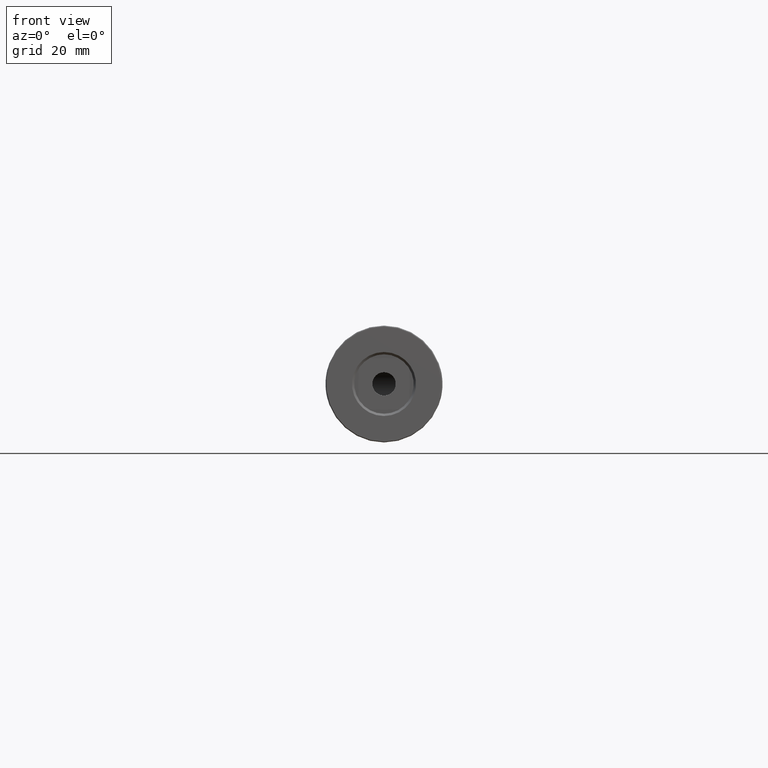
[diagram: clean part render]
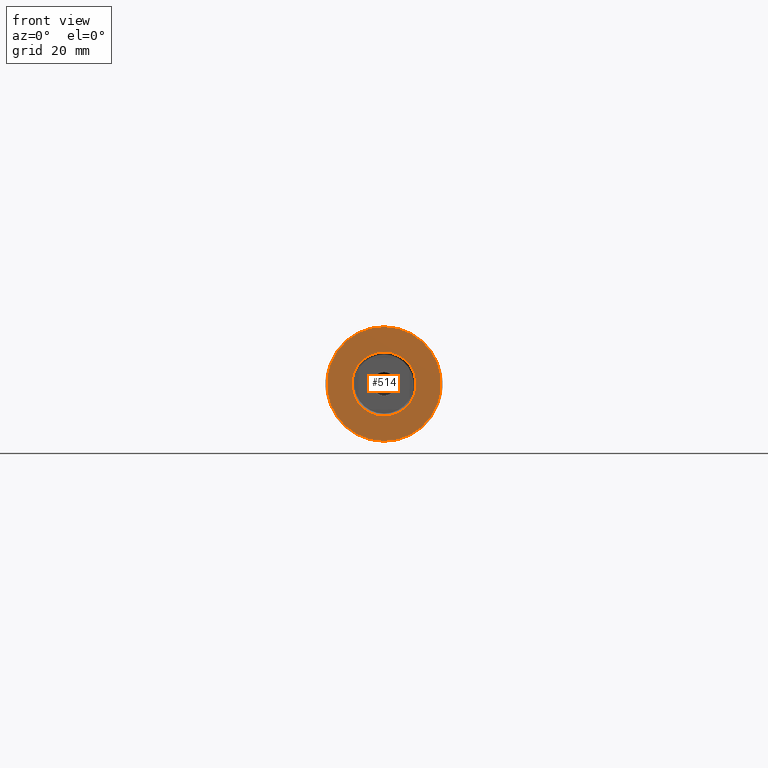
[diagram: same view with one face highlighted and labeled with its STEP entity id]
A machine part, front view. The second image highlights one B-rep face of the part: STEP entity #514.
In plain terms, the highlighted planar face has unit normal (0, 1, 0).
Its self-contained STEP definition (entity closure, byte-faithful):
#217 = CARTESIAN_POINT ( 'NONE',  ( -22.50520183104453409, -74.80174781523061256, 50.00000000000000000 ) ) ;
#307 = FACE_OUTER_BOUND ( 'NONE', #497, .T. ) ;
#390 = ORIENTED_EDGE ( 'NONE', *, *, #1206, .T. ) ;
#497 = EDGE_LOOP ( 'NONE', ( #2055, #390 ) ) ;
#514 = ADVANCED_FACE ( 'NONE', ( #307, #1941 ), #2471, .F. ) ;
#542 = DIRECTION ( 'NONE',  ( 0.0000000000000000000, 0.0000000000000000000, 1.000000000000000000 ) ) ;
#613 = DIRECTION ( 'NONE',  ( 0.0000000000000000000, 1.000000000000000000, 0.0000000000000000000 ) ) ;
#718 = DIRECTION ( 'NONE',  ( 0.0000000000000000000, 0.0000000000000000000, 1.000000000000000000 ) ) ;
#740 = CARTESIAN_POINT ( 'NONE',  ( -22.50520183104453409, -74.80174781523061256, 56.84999999999997300 ) ) ;
#813 = DIRECTION ( 'NONE',  ( 0.0000000000000000000, 0.0000000000000000000, 1.000000000000000000 ) ) ;
#833 = CIRCLE ( 'NONE', #2292, 6.849999999999967670 ) ;
#992 = VERTEX_POINT ( 'NONE', #2876 ) ;
#1001 = CARTESIAN_POINT ( 'NONE',  ( -22.50520183104453409, -74.80174781523061256, 50.00000000000000000 ) ) ;
#1034 = DIRECTION ( 'NONE',  ( -0.0000000000000000000, -1.000000000000000000, -0.0000000000000000000 ) ) ;
#1050 = CARTESIAN_POINT ( 'NONE',  ( -22.50520183104453409, -74.80174781523061256, 50.00000000000000000 ) ) ;
#1206 = EDGE_CURVE ( 'NONE', #1764, #992, #1282, .T. ) ;
#1273 = DIRECTION ( 'NONE',  ( 0.0000000000000000000, 0.0000000000000000000, 1.000000000000000000 ) ) ;
#1282 = CIRCLE ( 'NONE', #3000, 12.24999999999999645 ) ;
#1381 = CARTESIAN_POINT ( 'NONE',  ( -22.50520183104453409, -74.80174781523061256, 50.00000000000000000 ) ) ;
#1486 = ORIENTED_EDGE ( 'NONE', *, *, #2889, .T. ) ;
#1542 = EDGE_CURVE ( 'NONE', #2898, #1827, #1662, .T. ) ;
#1547 = DIRECTION ( 'NONE',  ( -0.0000000000000000000, -1.000000000000000000, -0.0000000000000000000 ) ) ;
#1662 = CIRCLE ( 'NONE', #1718, 6.849999999999967670 ) ;
#1666 = DIRECTION ( 'NONE',  ( 0.0000000000000000000, 1.000000000000000000, 0.0000000000000000000 ) ) ;
#1668 = CIRCLE ( 'NONE', #2624, 12.24999999999999645 ) ;
#1718 = AXIS2_PLACEMENT_3D ( 'NONE', #1911, #613, #813 ) ;
#1764 = VERTEX_POINT ( 'NONE', #2548 ) ;
#1827 = VERTEX_POINT ( 'NONE', #2766 ) ;
#1911 = CARTESIAN_POINT ( 'NONE',  ( -22.50520183104453409, -74.80174781523061256, 50.00000000000000000 ) ) ;
#1941 = FACE_BOUND ( 'NONE', #2584, .T. ) ;
#2055 = ORIENTED_EDGE ( 'NONE', *, *, #2771, .T. ) ;
#2292 = AXIS2_PLACEMENT_3D ( 'NONE', #1001, #2649, #1273 ) ;
#2471 = PLANE ( 'NONE',  #2792 ) ;
#2548 = CARTESIAN_POINT ( 'NONE',  ( -22.50520183104453409, -74.80174781523061256, 37.75000000000000711 ) ) ;
#2584 = EDGE_LOOP ( 'NONE', ( #1486, #3187 ) ) ;
#2624 = AXIS2_PLACEMENT_3D ( 'NONE', #1050, #1034, #718 ) ;
#2649 = DIRECTION ( 'NONE',  ( 0.0000000000000000000, 1.000000000000000000, 0.0000000000000000000 ) ) ;
#2766 = CARTESIAN_POINT ( 'NONE',  ( -22.50520183104453409, -74.80174781523061256, 43.15000000000003411 ) ) ;
#2771 = EDGE_CURVE ( 'NONE', #992, #1764, #1668, .T. ) ;
#2792 = AXIS2_PLACEMENT_3D ( 'NONE', #1381, #1666, #3223 ) ;
#2876 = CARTESIAN_POINT ( 'NONE',  ( -22.50520183104453409, -74.80174781523061256, 62.25000000000000000 ) ) ;
#2889 = EDGE_CURVE ( 'NONE', #1827, #2898, #833, .T. ) ;
#2898 = VERTEX_POINT ( 'NONE', #740 ) ;
#3000 = AXIS2_PLACEMENT_3D ( 'NONE', #217, #1547, #542 ) ;
#3187 = ORIENTED_EDGE ( 'NONE', *, *, #1542, .T. ) ;
#3223 = DIRECTION ( 'NONE',  ( 0.0000000000000000000, -0.0000000000000000000, 1.000000000000000000 ) ) ;